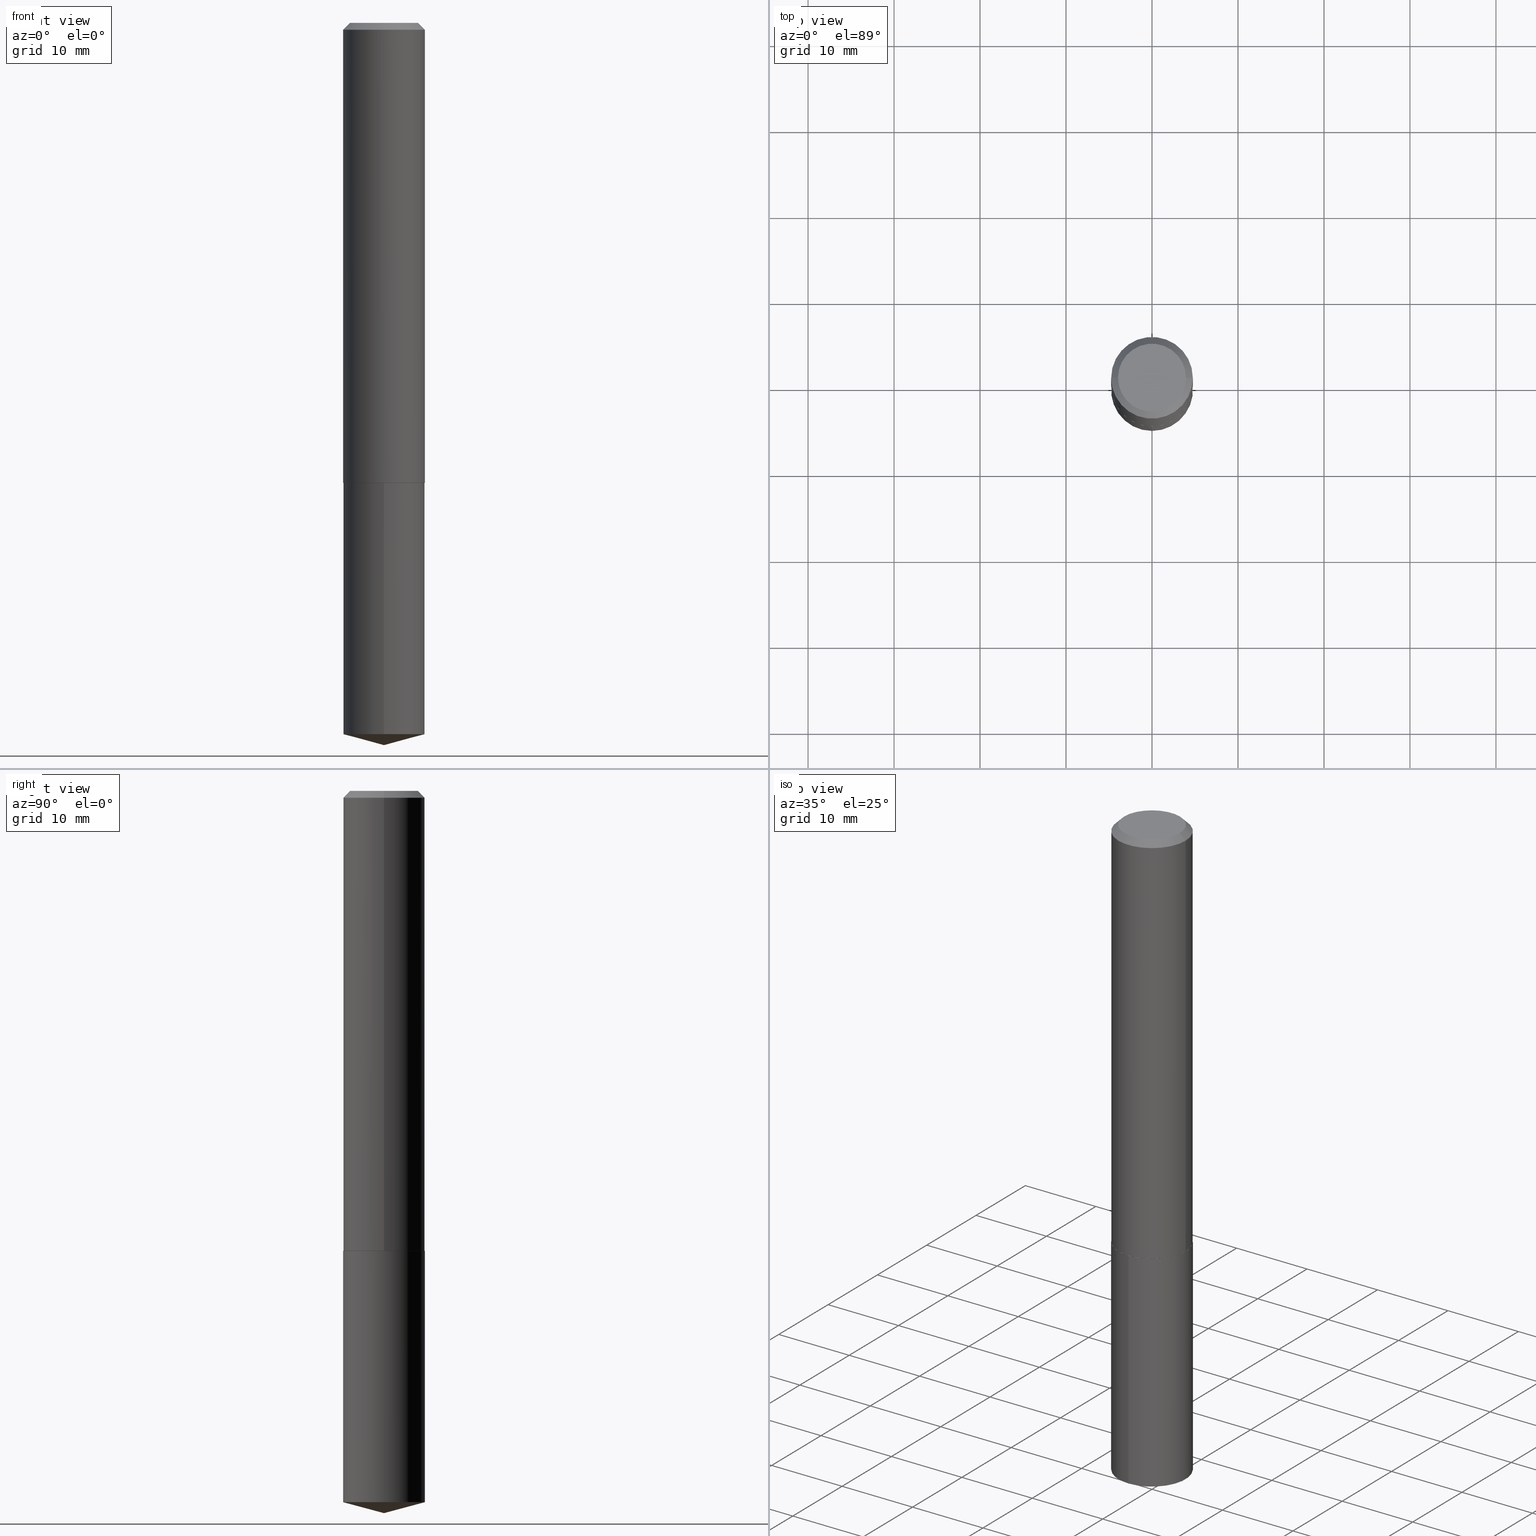
[diagram: canonical four-view strip — front | top / right | iso, engineering-drawing reading convention]
A machine part, canonical four-view strip (front | top / right | iso — engineering-drawing reading convention). The complete STEP part file that produces these views, byte-faithful:
ISO-10303-21;
HEADER;
FILE_DESCRIPTION (( 'STEP AP203' ),
    '1' );
FILE_NAME ('69030.STEP',
    '2024-04-23T14:29:03',
    ( '' ),
    ( '' ),
    'SwSTEP 2.0',
    'SolidWorks 2023',
    '' );
FILE_SCHEMA (( 'CONFIG_CONTROL_DESIGN' ));
ENDSEC;

DATA;
#1 = VERTEX_POINT ( 'NONE', #124 ) ;
#2 = LINE ( 'NONE', #221, #215 ) ;
#3 = DIRECTION ( 'NONE',  ( -2.445468806185136597E-29, 3.491481338843145583E-15, 1.000000000000000000 ) ) ;
#4 = CARTESIAN_POINT ( 'NONE',  ( 7.642090019328603538E-31, -1.091087918388490390E-16, -0.03125000000000021511 ) ) ;
#5 = EDGE_CURVE ( 'NONE', #281, #332, #63, .T. ) ;
#6 = CARTESIAN_POINT ( 'NONE',  ( -5.839929314523303030E-48, 8.337871319499263790E-34, 2.388061258337386140E-19 ) ) ;
#7 = ORIENTED_EDGE ( 'NONE', *, *, #5, .T. ) ;
#8 = CIRCLE ( 'NONE', #83, 0.1557499999999999996 ) ;
#9 = AXIS2_PLACEMENT_3D ( 'NONE', #148, #192, #74 ) ;
#10 = DIRECTION ( 'NONE',  ( -6.982962677686266711E-15, -1.000000000000000000, 2.921762560068730595E-15 ) ) ;
#11 = EDGE_CURVE ( 'NONE', #146, #362, #228, .T. ) ;
#12 = PERSON_AND_ORGANIZATION ( #333, #45 ) ;
#13 = EDGE_CURVE ( 'NONE', #181, #119, #117, .T. ) ;
#14 = SECURITY_CLASSIFICATION ( '', '', #57 ) ;
#15 = ORIENTED_EDGE ( 'NONE', *, *, #245, .F. ) ;
#16 = CALENDAR_DATE ( 2024, 23, 4 ) ;
#17 = ORIENTED_EDGE ( 'NONE', *, *, #178, .T. ) ;
#18 = VECTOR ( 'NONE', #326, 39.37007874015748854 ) ;
#19 = PERSON_AND_ORGANIZATION_ROLE ( 'design_supplier' ) ;
#20 = CC_DESIGN_PERSON_AND_ORGANIZATION_ASSIGNMENT ( #278, #359, ( #132 ) ) ;
#21 = ORIENTED_EDGE ( 'NONE', *, *, #178, .F. ) ;
#22 = ORIENTED_EDGE ( 'NONE', *, *, #234, .T. ) ;
#23 = VERTEX_POINT ( 'NONE', #127 ) ;
#24 = EDGE_CURVE ( 'NONE', #181, #261, #258, .T. ) ;
#25 = VECTOR ( 'NONE', #195, 39.37007874015748854 ) ;
#26 = ORIENTED_EDGE ( 'NONE', *, *, #364, .F. ) ;
#27 = LOCAL_TIME ( 10, 29, 3.000000000000000000, #210 ) ;
#28 = DIRECTION ( 'NONE',  ( -0.7071067811862092878, 7.493145998869131426E-15, 0.7071067811868855246 ) ) ;
#29 = DIRECTION ( 'NONE',  ( -2.445529047864753250E-29, 3.491395069329191729E-15, 1.000000000000000000 ) ) ;
#30 = PRODUCT_DEFINITION_SHAPE ( 'NONE', 'NONE',  #263 ) ;
#31 =( NAMED_UNIT ( * ) SI_UNIT ( $, .STERADIAN. ) SOLID_ANGLE_UNIT ( ) );
#32 = CARTESIAN_POINT ( 'NONE',  ( -8.819318894863392417E-28, 1.259099244492320307E-13, 36.06297874015748306 ) ) ;
#33 = DIRECTION ( 'NONE',  ( -2.445468806185136597E-29, 3.491481338843145583E-15, 1.000000000000000000 ) ) ;
#34 = ORIENTED_EDGE ( 'NONE', *, *, #212, .F. ) ;
#35 = CARTESIAN_POINT ( 'NONE',  ( 1.328714915871438620E-15, 0.1869999999999926721, -2.106300000000000949 ) ) ;
#36 = CIRCLE ( 'NONE', #161, 0.1865000000000008595 ) ;
#37 = APPROVAL_PERSON_ORGANIZATION ( #356, #200, #327 ) ;
#38 = EDGE_CURVE ( 'NONE', #90, #51, #36, .T. ) ;
#39 = CARTESIAN_POINT ( 'NONE',  ( -0.1557499999999999996, 1.142150832969059533E-15, 2.388061258259420163E-19 ) ) ;
#40 = EDGE_LOOP ( 'NONE', ( #21, #368, #338, #302 ) ) ;
#41 = DIRECTION ( 'NONE',  ( -6.982962677686266711E-15, -1.000000000000000000, 2.921762560068730595E-15 ) ) ;
#42 = PRODUCT_RELATED_PRODUCT_CATEGORY ( 'detail', '', ( #284 ) ) ;
#43 = APPLICATION_PROTOCOL_DEFINITION ( 'international standard', 'config_control_design', 1994, #219 ) ;
#44 = CIRCLE ( 'NONE', #255, 0.1870000000000002771 ) ;
#45 = ORGANIZATION ( 'UNSPECIFIED', 'UNSPECIFIED', '' ) ;
#46 = DIRECTION ( 'NONE',  ( 1.000000000000000000, -6.982962677686265922E-15, 4.876176775795935793E-29 ) ) ;
#47 = LINE ( 'NONE', #174, #123 ) ;
#48 = COORDINATED_UNIVERSAL_TIME_OFFSET ( 5, 0, .BEHIND. ) ;
#49 = MANIFOLD_SOLID_BREP ( 'Body-Move/Copy2[2]', #67 ) ;
#50 = DIRECTION ( 'NONE',  ( -6.982962677686266711E-15, -1.000000000000000000, 2.921762560068730595E-15 ) ) ;
#51 = VERTEX_POINT ( 'NONE', #283 ) ;
#52 = DIRECTION ( 'NONE',  ( 2.445468806185136597E-29, -3.491481338843145583E-15, -1.000000000000000000 ) ) ;
#53 = APPROVAL_DATE_TIME ( #243, #200 ) ;
#54 = ORIENTED_EDGE ( 'NONE', *, *, #250, .F. ) ;
#55 = PERSON_AND_ORGANIZATION_ROLE ( 'creator' ) ;
#56 = ORIENTED_EDGE ( 'NONE', *, *, #24, .T. ) ;
#57 = SECURITY_CLASSIFICATION_LEVEL ( 'unclassified' ) ;
#58 = EDGE_CURVE ( 'NONE', #362, #332, #176, .T. ) ;
#59 = EDGE_LOOP ( 'NONE', ( #26, #225, #56, #329 ) ) ;
#60 = ADVANCED_FACE ( 'NONE', ( #290 ), #335, .T. ) ;
#61 = EDGE_LOOP ( 'NONE', ( #275, #108, #190, #87 ) ) ;
#62 = FACE_OUTER_BOUND ( 'NONE', #344, .T. ) ;
#63 = LINE ( 'NONE', #120, #138 ) ;
#64 = EDGE_CURVE ( 'NONE', #92, #362, #154, .T. ) ;
#65 = LINE ( 'NONE', #129, #25 ) ;
#66 = CARTESIAN_POINT ( 'NONE',  ( 5.149668212064661332E-29, -7.352361403335897886E-15, -2.105800000000000338 ) ) ;
#67 = CLOSED_SHELL ( 'NONE', ( #186, #88, #60, #194, #336, #93, #286, #291 ) ) ;
#68 = CARTESIAN_POINT ( 'NONE',  ( 0.000000000000000000, 0.000000000000000000, 0.000000000000000000 ) ) ;
#69 = CC_DESIGN_DATE_AND_TIME_ASSIGNMENT ( #180, #109, ( #263 ) ) ;
#70 = CARTESIAN_POINT ( 'NONE',  ( 5.150890946467754134E-29, -7.354107144005318601E-15, -2.106300000000000505 ) ) ;
#71 = DIRECTION ( 'NONE',  ( -2.445468806185136877E-29, 3.491481338843145188E-15, 1.000000000000000000 ) ) ;
#72 = CARTESIAN_POINT ( 'NONE',  ( 0.1870000000000002771, -8.658175424063231465E-15, -2.105800000000000338 ) ) ;
#73 = CIRCLE ( 'NONE', #340, 0.1870000000000002771 ) ;
#74 = DIRECTION ( 'NONE',  ( -6.982962677686266711E-15, -1.000000000000000000, 2.921762560068730595E-15 ) ) ;
#75 = FACE_OUTER_BOUND ( 'NONE', #80, .T. ) ;
#76 = DIRECTION ( 'NONE',  ( 1.000000000000000000, -6.982962677686265133E-15, 0.000000000000000000 ) ) ;
#77 = CC_DESIGN_PERSON_AND_ORGANIZATION_ASSIGNMENT ( #205, #319, ( #284 ) ) ;
#78 = PLANE ( 'NONE',  #374 ) ;
#79 = PERSON_AND_ORGANIZATION ( #333, #45 ) ;
#80 = EDGE_LOOP ( 'NONE', ( #242, #116, #334, #247 ) ) ;
#81 = DIRECTION ( 'NONE',  ( 1.000000000000000000, -6.982962677686266711E-15, 0.000000000000000000 ) ) ;
#82 = APPROVAL_ROLE ( '' ) ;
#83 = AXIS2_PLACEMENT_3D ( 'NONE', #6, #126, #227 ) ;
#84 = EDGE_LOOP ( 'NONE', ( #188, #310, #183 ) ) ;
#85 = AXIS2_PLACEMENT_3D ( 'NONE', #365, #155, #102 ) ;
#86 = CALENDAR_DATE ( 2024, 23, 4 ) ;
#87 = ORIENTED_EDGE ( 'NONE', *, *, #234, .F. ) ;
#88 = ADVANCED_FACE ( 'NONE', ( #376 ), #163, .T. ) ;
#89 = AXIS2_PLACEMENT_3D ( 'NONE', #32, #160, #288 ) ;
#90 = VERTEX_POINT ( 'NONE', #164 ) ;
#91 = CIRCLE ( 'NONE', #305, 0.1557499999999999996 ) ;
#92 = VERTEX_POINT ( 'NONE', #292 ) ;
#93 = ADVANCED_FACE ( 'NONE', ( #101 ), #232, .T. ) ;
#94 = DIRECTION ( 'NONE',  ( -2.445529047864752970E-29, 3.491395069329191335E-15, 1.000000000000000000 ) ) ;
#95 = CARTESIAN_POINT ( 'NONE',  ( 7.964945328390054488E-29, -1.137163275975956234E-14, -3.256993501015380321 ) ) ;
#96 = CARTESIAN_POINT ( 'NONE',  ( -0.1870000000000001383, 1.328714915871388330E-15, -9.198408618776680107E-30 ) ) ;
#97 = CARTESIAN_POINT ( 'NONE',  ( 5.150890946467754134E-29, -7.354107144005318601E-15, -2.106300000000000505 ) ) ;
#98 = CARTESIAN_POINT ( 'NONE',  ( -0.1870000000000000551, 1.196705228888483098E-15, -0.03125000000000021511 ) ) ;
#99 = AXIS2_PLACEMENT_3D ( 'NONE', #68, #223, #202 ) ;
#100 = DIRECTION ( 'NONE',  ( -1.000000000000000000, 6.982962677686266711E-15, 0.000000000000000000 ) ) ;
#101 = FACE_OUTER_BOUND ( 'NONE', #325, .T. ) ;
#102 = DIRECTION ( 'NONE',  ( 1.000000000000000000, 0.000000000000000000, 0.000000000000000000 ) ) ;
#103 = DIRECTION ( 'NONE',  ( 1.000000000000000000, -6.982962677686265133E-15, 0.000000000000000000 ) ) ;
#104 = CARTESIAN_POINT ( 'NONE',  ( -1.305814020727252721E-15, -0.1870000000000114626, -3.256993501015379877 ) ) ;
#105 = AXIS2_PLACEMENT_3D ( 'NONE', #97, #94, #317 ) ;
#106 = SHAPE_DEFINITION_REPRESENTATION ( #30, #171 ) ;
#107 = CARTESIAN_POINT ( 'NONE',  ( 5.150890946467754134E-29, -7.354107144005318601E-15, -2.106300000000000505 ) ) ;
#108 = ORIENTED_EDGE ( 'NONE', *, *, #389, .T. ) ;
#109 = DATE_TIME_ROLE ( 'creation_date' ) ;
#110 = ADVANCED_FACE ( 'NONE', ( #62 ), #313, .T. ) ;
#111 = CIRCLE ( 'NONE', #369, 0.1870000000000000551 ) ;
#112 = AXIS2_PLACEMENT_3D ( 'NONE', #375, #301, #41 ) ;
#113 = ORIENTED_EDGE ( 'NONE', *, *, #130, .T. ) ;
#114 = DATE_AND_TIME ( #86, #280 ) ;
#115 = APPROVAL ( #331, 'UNSPECIFIED' ) ;
#116 = ORIENTED_EDGE ( 'NONE', *, *, #130, .F. ) ;
#117 = CIRCLE ( 'NONE', #229, 0.1869999999999999996 ) ;
#118 = AXIS2_PLACEMENT_3D ( 'NONE', #143, #295, #324 ) ;
#119 = VERTEX_POINT ( 'NONE', #141 ) ;
#120 = CARTESIAN_POINT ( 'NONE',  ( 0.1870000000000001383, -1.305814020727332790E-15, 9.118450570738406715E-30 ) ) ;
#121 = EDGE_CURVE ( 'NONE', #23, #332, #65, .T. ) ;
#122 = DIRECTION ( 'NONE',  ( -2.445468806185136597E-29, 3.491481338843145583E-15, 1.000000000000000000 ) ) ;
#123 = VECTOR ( 'NONE', #136, 39.37007874015748854 ) ;
#124 = CARTESIAN_POINT ( 'NONE',  ( 1.328714915871467217E-15, 0.1869999999999926998, -2.106300000000000949 ) ) ;
#125 = APPLICATION_PROTOCOL_DEFINITION ( 'international standard', 'config_control_design', 1994, #277 ) ;
#126 = DIRECTION ( 'NONE',  ( -2.445468806185136597E-29, 3.491481338843145583E-15, 1.000000000000000000 ) ) ;
#127 = CARTESIAN_POINT ( 'NONE',  ( 0.1557499999999999996, -1.230272240287521027E-15, 2.388061258418428791E-19 ) ) ;
#128 = CARTESIAN_POINT ( 'NONE',  ( -0.1870000000000000551, -2.402020181715984177E-15, -0.03125000000000021511 ) ) ;
#129 = CARTESIAN_POINT ( 'NONE',  ( 0.1870000000000000551, -1.392021917422125758E-15, -0.03125000000000021511 ) ) ;
#130 = EDGE_CURVE ( 'NONE', #146, #23, #91, .T. ) ;
#131 = CONICAL_SURFACE ( 'NONE', #385, 0.1870000000000000551, 0.7853981633974456145 ) ;
#132 = PRODUCT_DEFINITION_FORMATION_WITH_SPECIFIED_SOURCE ( 'ANY', '', #284, .NOT_KNOWN. ) ;
#133 = FACE_OUTER_BOUND ( 'NONE', #366, .T. ) ;
#134 = DESIGN_CONTEXT ( 'detailed design', #219, 'design' ) ;
#135 = ORIENTED_EDGE ( 'NONE', *, *, #381, .T. ) ;
#136 = DIRECTION ( 'NONE',  ( -6.745023994389837555E-15, -0.9659258262890675351, 0.2588190451025239036 ) ) ;
#137 = PERSON_AND_ORGANIZATION_ROLE ( 'classification_officer' ) ;
#138 = VECTOR ( 'NONE', #71, 39.37007874015748143 ) ;
#139 = LOCAL_TIME ( 10, 29, 3.000000000000000000, #48 ) ;
#140 = FACE_OUTER_BOUND ( 'NONE', #40, .T. ) ;
#141 = CARTESIAN_POINT ( 'NONE',  ( 1.328714915871467414E-15, 0.1869999999999887030, -3.256993501015380765 ) ) ;
#142 = ORIENTED_EDGE ( 'NONE', *, *, #13, .F. ) ;
#143 = CARTESIAN_POINT ( 'NONE',  ( -2.919964657261651515E-48, 4.168935659749631895E-34, 1.194030629168693070E-19 ) ) ;
#144 = CALENDAR_DATE ( 2024, 23, 4 ) ;
#145 = EDGE_CURVE ( 'NONE', #261, #1, #151, .T. ) ;
#146 = VERTEX_POINT ( 'NONE', #39 ) ;
#147 = CARTESIAN_POINT ( 'NONE',  ( 5.150890946467754134E-29, -7.354107144005318601E-15, -2.106300000000000505 ) ) ;
#148 = CARTESIAN_POINT ( 'NONE',  ( 7.964945328390054488E-29, -1.137163275975956234E-14, -3.256993501015380321 ) ) ;
#149 = ORIENTED_EDGE ( 'NONE', *, *, #245, .T. ) ;
#150 = DIRECTION ( 'NONE',  ( -2.445529047864753250E-29, 3.491395069329191729E-15, 1.000000000000000000 ) ) ;
#151 = CIRCLE ( 'NONE', #105, 0.1869999999999999996 ) ;
#152 = AXIS2_PLACEMENT_3D ( 'NONE', #320, #52, #321 ) ;
#153 = ORIENTED_EDGE ( 'NONE', *, *, #58, .F. ) ;
#154 = LINE ( 'NONE', #96, #266 ) ;
#155 = DIRECTION ( 'NONE',  ( 0.000000000000000000, 0.000000000000000000, 1.000000000000000000 ) ) ;
#156 = DIRECTION ( 'NONE',  ( 6.863315791527691893E-15, 0.9659258262890693114, 0.2588190451025171313 ) ) ;
#157 = ORIENTED_EDGE ( 'NONE', *, *, #346, .F. ) ;
#158 = DIRECTION ( 'NONE',  ( -2.445529047864752970E-29, 3.491395069329191335E-15, 1.000000000000000000 ) ) ;
#159 = CARTESIAN_POINT ( 'NONE',  ( 0.1870000000000000551, -1.414922812566181102E-15, -0.03125000000000021511 ) ) ;
#160 = DIRECTION ( 'NONE',  ( -2.445529047864752970E-29, 3.491395069329191335E-15, 1.000000000000000000 ) ) ;
#161 = AXIS2_PLACEMENT_3D ( 'NONE', #252, #350, #372 ) ;
#162 = VECTOR ( 'NONE', #28, 39.37007874015748854 ) ;
#163 = CYLINDRICAL_SURFACE ( 'NONE', #99, 0.1870000000000001383 ) ;
#164 = CARTESIAN_POINT ( 'NONE',  ( 0.1865000000000008595, -8.656429683393813906E-15, -2.106300000000000505 ) ) ;
#165 = UNCERTAINTY_MEASURE_WITH_UNIT (LENGTH_MEASURE( 1.000000000000000082E-05 ), #224, 'distance_accuracy_value', 'NONE');
#166 = PERSON_AND_ORGANIZATION ( #333, #45 ) ;
#167 = CIRCLE ( 'NONE', #237, 0.1869999999999999996 ) ;
#168 = DIRECTION ( 'NONE',  ( 1.000000000000000000, -6.982962677686266711E-15, 0.000000000000000000 ) ) ;
#169 = PLANE ( 'NONE',  #358 ) ;
#170 = ADVANCED_FACE ( 'NONE', ( #312 ), #191, .T. ) ;
#171 = ADVANCED_BREP_SHAPE_REPRESENTATION ( '69030', ( #187, #49, #85 ), #361 ) ;
#172 = PLANE ( 'NONE',  #118 ) ;
#173 = APPROVAL_DATE_TIME ( #214, #330 ) ;
#174 = CARTESIAN_POINT ( 'NONE',  ( 8.087355340093972411E-29, -1.154675605273305340E-14, -3.307100000000000151 ) ) ;
#175 = CALENDAR_DATE ( 2024, 23, 4 ) ;
#176 = CIRCLE ( 'NONE', #306, 0.1870000000000000551 ) ;
#177 = ORIENTED_EDGE ( 'NONE', *, *, #145, .T. ) ;
#178 = EDGE_CURVE ( 'NONE', #23, #146, #8, .T. ) ;
#179 = DIRECTION ( 'NONE',  ( 2.445529047864752409E-29, -3.491395069329191729E-15, -1.000000000000000000 ) ) ;
#180 = DATE_AND_TIME ( #16, #27 ) ;
#181 = VERTEX_POINT ( 'NONE', #104 ) ;
#182 = APPROVAL_DATE_TIME ( #246, #115 ) ;
#183 = ORIENTED_EDGE ( 'NONE', *, *, #342, .F. ) ;
#184 = APPROVAL_ROLE ( '' ) ;
#185 = APPROVAL_PERSON_ORGANIZATION ( #166, #330, #82 ) ;
#186 = ADVANCED_FACE ( 'NONE', ( #140 ), #131, .T. ) ;
#187 = MANIFOLD_SOLID_BREP ( 'Body-Move/Copy2[1]', #352 ) ;
#188 = ORIENTED_EDGE ( 'NONE', *, *, #381, .F. ) ;
#189 = ORIENTED_EDGE ( 'NONE', *, *, #24, .F. ) ;
#190 = ORIENTED_EDGE ( 'NONE', *, *, #220, .F. ) ;
#191 = CONICAL_SURFACE ( 'NONE', #89, 146.9311341562551547, 1.308996938995747428 ) ;
#192 = DIRECTION ( 'NONE',  ( -2.445529047864752970E-29, 3.491395069329191335E-15, 1.000000000000000000 ) ) ;
#193 = AXIS2_PLACEMENT_3D ( 'NONE', #249, #33, #76 ) ;
#194 = ADVANCED_FACE ( 'NONE', ( #353 ), #169, .F. ) ;
#195 = DIRECTION ( 'NONE',  ( 0.7071067811865455743, -7.319954787623248157E-15, -0.7071067811865493491 ) ) ;
#196 = CARTESIAN_POINT ( 'NONE',  ( -8.819318894863392417E-28, 1.259099244492320307E-13, 36.06297874015748306 ) ) ;
#197 =( NAMED_UNIT ( * ) PLANE_ANGLE_UNIT ( ) SI_UNIT ( $, .RADIAN. ) );
#198 = DIRECTION ( 'NONE',  ( 1.000000000000000000, -6.982962677686265922E-15, 4.876169439353216906E-29 ) ) ;
#199 = DIRECTION ( 'NONE',  ( -2.445529047864752970E-29, 3.491395069329191335E-15, 1.000000000000000000 ) ) ;
#200 = APPROVAL ( #383, 'UNSPECIFIED' ) ;
#201 = DIRECTION ( 'NONE',  ( 1.000000000000000000, -6.982962677686265133E-15, 0.000000000000000000 ) ) ;
#202 = DIRECTION ( 'NONE',  ( 1.000000000000000000, -6.982962677686266711E-15, 4.876176775795935793E-29 ) ) ;
#203 = CARTESIAN_POINT ( 'NONE',  ( 5.149668212064661332E-29, -7.352361403335897886E-15, -2.105800000000000338 ) ) ;
#204 = CARTESIAN_POINT ( 'NONE',  ( 0.000000000000000000, 0.000000000000000000, 0.000000000000000000 ) ) ;
#205 = PERSON_AND_ORGANIZATION ( #333, #45 ) ;
#206 = DIRECTION ( 'NONE',  ( 1.000000000000000000, -6.982962677686265133E-15, 0.000000000000000000 ) ) ;
#207 = ADVANCED_FACE ( 'NONE', ( #133 ), #357, .T. ) ;
#208 = FACE_OUTER_BOUND ( 'NONE', #363, .T. ) ;
#209 = FACE_OUTER_BOUND ( 'NONE', #382, .T. ) ;
#210 = COORDINATED_UNIVERSAL_TIME_OFFSET ( 5, 0, .BEHIND. ) ;
#211 = DIRECTION ( 'NONE',  ( -2.445468806185136597E-29, 3.491481338843145583E-15, 1.000000000000000000 ) ) ;
#212 = EDGE_CURVE ( 'NONE', #332, #362, #111, .T. ) ;
#213 = DIRECTION ( 'NONE',  ( -2.445468806185136597E-29, 3.491481338843145583E-15, 1.000000000000000000 ) ) ;
#214 = DATE_AND_TIME ( #144, #218 ) ;
#215 = VECTOR ( 'NONE', #156, 39.37007874015748854 ) ;
#216 = DATE_TIME_ROLE ( 'classification_date' ) ;
#217 = ORIENTED_EDGE ( 'NONE', *, *, #346, .T. ) ;
#218 = LOCAL_TIME ( 10, 29, 3.000000000000000000, #271 ) ;
#219 = APPLICATION_CONTEXT ( 'configuration controlled 3d designs of mechanical parts and assemblies' ) ;
#220 = EDGE_CURVE ( 'NONE', #281, #92, #73, .T. ) ;
#221 = CARTESIAN_POINT ( 'NONE',  ( 8.087611339492822148E-29, -1.154639263377856936E-14, -3.307100000000000151 ) ) ;
#222 = AXIS2_PLACEMENT_3D ( 'NONE', #204, #3, #343 ) ;
#223 = DIRECTION ( 'NONE',  ( -2.445468806185136597E-29, 3.491481338843145583E-15, 1.000000000000000000 ) ) ;
#224 =( CONVERSION_BASED_UNIT ( 'INCH', #254 ) LENGTH_UNIT ( ) NAMED_UNIT ( #276 ) );
#225 = ORIENTED_EDGE ( 'NONE', *, *, #342, .T. ) ;
#226 = LINE ( 'NONE', #309, #162 ) ;
#227 = DIRECTION ( 'NONE',  ( 1.000000000000000000, -6.982962677686265922E-15, 4.876169439353216906E-29 ) ) ;
#228 = LINE ( 'NONE', #98, #298 ) ;
#229 = AXIS2_PLACEMENT_3D ( 'NONE', #95, #199, #289 ) ;
#230 = DIRECTION ( 'NONE',  ( -2.445468806185136877E-29, 3.491481338843145188E-15, 1.000000000000000000 ) ) ;
#231 = FACE_OUTER_BOUND ( 'NONE', #59, .T. ) ;
#232 = CYLINDRICAL_SURFACE ( 'NONE', #222, 0.1870000000000001383 ) ;
#233 = MECHANICAL_CONTEXT ( 'NONE', #277, 'mechanical' ) ;
#234 = EDGE_CURVE ( 'NONE', #90, #281, #379, .T. ) ;
#235 = DIRECTION ( 'NONE',  ( -2.445468806185136597E-29, 3.491481338843145583E-15, 1.000000000000000000 ) ) ;
#236 = CARTESIAN_POINT ( 'NONE',  ( 0.1870000000000002771, -8.658175424063231465E-15, -2.105800000000000338 ) ) ;
#237 = AXIS2_PLACEMENT_3D ( 'NONE', #147, #282, #10 ) ;
#238 = DIRECTION ( 'NONE',  ( -2.445468806185136597E-29, 3.491481338843145583E-15, 1.000000000000000000 ) ) ;
#239 = CC_DESIGN_PERSON_AND_ORGANIZATION_ASSIGNMENT ( #386, #55, ( #263 ) ) ;
#240 = DIRECTION ( 'NONE',  ( 2.445468806185136597E-29, -3.491481338843145583E-15, -1.000000000000000000 ) ) ;
#241 = PERSON_AND_ORGANIZATION ( #333, #45 ) ;
#242 = ORIENTED_EDGE ( 'NONE', *, *, #121, .F. ) ;
#243 = DATE_AND_TIME ( #175, #370 ) ;
#244 = AXIS2_PLACEMENT_3D ( 'NONE', #351, #211, #168 ) ;
#245 = EDGE_CURVE ( 'NONE', #92, #281, #44, .T. ) ;
#246 = DATE_AND_TIME ( #265, #139 ) ;
#247 = ORIENTED_EDGE ( 'NONE', *, *, #58, .T. ) ;
#248 = ORIENTED_EDGE ( 'NONE', *, *, #64, .T. ) ;
#249 = CARTESIAN_POINT ( 'NONE',  ( 5.149668212064661332E-29, -7.352361403335897886E-15, -2.105800000000000338 ) ) ;
#250 = EDGE_CURVE ( 'NONE', #387, #181, #47, .T. ) ;
#251 = LINE ( 'NONE', #35, #273 ) ;
#252 = CARTESIAN_POINT ( 'NONE',  ( 5.150890946467754134E-29, -7.354107144005318601E-15, -2.106300000000000505 ) ) ;
#253 =( LENGTH_UNIT ( ) NAMED_UNIT ( * ) SI_UNIT ( $, .METRE. ) );
#254 = LENGTH_MEASURE_WITH_UNIT ( LENGTH_MEASURE( 0.02539999999999999897 ), #253 );
#255 = AXIS2_PLACEMENT_3D ( 'NONE', #349, #238, #206 ) ;
#256 = CC_DESIGN_APPROVAL ( #200, ( #132 ) ) ;
#257 = DIRECTION ( 'NONE',  ( -0.7071067811865455743, 2.468850131082236945E-15, -0.7071067811865493491 ) ) ;
#258 = LINE ( 'NONE', #345, #378 ) ;
#259 = DIRECTION ( 'NONE',  ( 1.000000000000000000, -6.982962677686266711E-15, 0.000000000000000000 ) ) ;
#260 = CONICAL_SURFACE ( 'NONE', #152, 0.1870000000000000551, 0.7853981633974456145 ) ;
#261 = VERTEX_POINT ( 'NONE', #377 ) ;
#262 = DIRECTION ( 'NONE',  ( -2.445529047864752970E-29, 3.491395069329191335E-15, 1.000000000000000000 ) ) ;
#263 = PRODUCT_DEFINITION ( 'UNKNOWN', '', #132, #134 ) ;
#264 = CARTESIAN_POINT ( 'NONE',  ( 7.642090019328603538E-31, -1.091087918388490390E-16, -0.03125000000000021511 ) ) ;
#265 = CALENDAR_DATE ( 2024, 23, 4 ) ;
#266 = VECTOR ( 'NONE', #230, 39.37007874015748143 ) ;
#267 = CYLINDRICAL_SURFACE ( 'NONE', #112, 0.1869999999999999996 ) ;
#268 = COORDINATED_UNIVERSAL_TIME_OFFSET ( 5, 0, .BEHIND. ) ;
#269 = EDGE_LOOP ( 'NONE', ( #177, #390 ) ) ;
#270 = EDGE_LOOP ( 'NONE', ( #384, #248, #34, #279 ) ) ;
#271 = COORDINATED_UNIVERSAL_TIME_OFFSET ( 5, 0, .BEHIND. ) ;
#272 = AXIS2_PLACEMENT_3D ( 'NONE', #66, #315, #201 ) ;
#273 = VECTOR ( 'NONE', #150, 39.37007874015748143 ) ;
#274 = CC_DESIGN_PERSON_AND_ORGANIZATION_ASSIGNMENT ( #241, #19, ( #132 ) ) ;
#275 = ORIENTED_EDGE ( 'NONE', *, *, #38, .T. ) ;
#276 = DIMENSIONAL_EXPONENTS ( 1.000000000000000000, 0.000000000000000000, 0.000000000000000000, 0.000000000000000000, 0.000000000000000000, 0.000000000000000000, 0.000000000000000000 ) ;
#277 = APPLICATION_CONTEXT ( 'configuration controlled 3d designs of mechanical parts and assemblies' ) ;
#278 = PERSON_AND_ORGANIZATION ( #333, #45 ) ;
#279 = ORIENTED_EDGE ( 'NONE', *, *, #5, .F. ) ;
#280 = LOCAL_TIME ( 10, 29, 3.000000000000000000, #268 ) ;
#281 = VERTEX_POINT ( 'NONE', #236 ) ;
#282 = DIRECTION ( 'NONE',  ( -2.445529047864752970E-29, 3.491395069329191335E-15, 1.000000000000000000 ) ) ;
#283 = CARTESIAN_POINT ( 'NONE',  ( -0.1865000000000008595, -6.026295714638616615E-15, -2.106300000000000505 ) ) ;
#284 = PRODUCT ( '69030', '69030', '', ( #233 ) ) ;
#285 = DIRECTION ( 'NONE',  ( -6.982962677686265922E-15, -1.000000000000000000, 3.510303681827636883E-15 ) ) ;
#286 = ADVANCED_FACE ( 'NONE', ( #75 ), #260, .T. ) ;
#287 = CIRCLE ( 'NONE', #9, 0.1869999999999999996 ) ;
#288 = DIRECTION ( 'NONE',  ( -6.982962677686265922E-15, -1.000000000000000000, 3.510303681827636883E-15 ) ) ;
#289 = DIRECTION ( 'NONE',  ( -6.982962677686266711E-15, -1.000000000000000000, 2.921762560068730595E-15 ) ) ;
#290 = FACE_OUTER_BOUND ( 'NONE', #61, .T. ) ;
#291 = ADVANCED_FACE ( 'NONE', ( #209 ), #172, .F. ) ;
#292 = CARTESIAN_POINT ( 'NONE',  ( -0.1870000000000002771, -6.023646487464508570E-15, -2.105800000000000338 ) ) ;
#293 = AXIS2_PLACEMENT_3D ( 'NONE', #70, #262, #50 ) ;
#294 = CARTESIAN_POINT ( 'NONE',  ( 7.642090019328603538E-31, -1.091087918388490390E-16, -0.03125000000000021511 ) ) ;
#295 = DIRECTION ( 'NONE',  ( 2.438088387897960049E-29, -3.491481338843145188E-15, -1.000000000000000000 ) ) ;
#296 = APPROVAL_STATUS ( 'not_yet_approved' ) ;
#297 = DIRECTION ( 'NONE',  ( 6.982962677686265922E-15, 1.000000000000000000, -3.491395069329191729E-15 ) ) ;
#298 = VECTOR ( 'NONE', #257, 39.37007874015748854 ) ;
#299 = CC_DESIGN_SECURITY_CLASSIFICATION ( #14, ( #132 ) ) ;
#300 = ORIENTED_EDGE ( 'NONE', *, *, #389, .F. ) ;
#301 = DIRECTION ( 'NONE',  ( -2.445529047864752970E-29, 3.491395069329191335E-15, 1.000000000000000000 ) ) ;
#302 = ORIENTED_EDGE ( 'NONE', *, *, #11, .F. ) ;
#303 = ADVANCED_FACE ( 'NONE', ( #355 ), #78, .F. ) ;
#304 = ORIENTED_EDGE ( 'NONE', *, *, #13, .T. ) ;
#305 = AXIS2_PLACEMENT_3D ( 'NONE', #339, #122, #198 ) ;
#306 = AXIS2_PLACEMENT_3D ( 'NONE', #4, #348, #259 ) ;
#307 = CONICAL_SURFACE ( 'NONE', #193, 0.1870000000000002771, 0.7853981633969702170 ) ;
#308 = ORIENTED_EDGE ( 'NONE', *, *, #64, .F. ) ;
#309 = CARTESIAN_POINT ( 'NONE',  ( -0.1870000000000002771, -6.023646487464508570E-15, -2.105800000000000338 ) ) ;
#310 = ORIENTED_EDGE ( 'NONE', *, *, #250, .T. ) ;
#311 = ADVANCED_FACE ( 'NONE', ( #231 ), #267, .T. ) ;
#312 = FACE_OUTER_BOUND ( 'NONE', #84, .T. ) ;
#313 = CONICAL_SURFACE ( 'NONE', #328, 146.9311341562551547, 1.308996938995747428 ) ;
#314 = APPROVAL_PERSON_ORGANIZATION ( #79, #115, #184 ) ;
#315 = DIRECTION ( 'NONE',  ( -2.445468806185136597E-29, 3.491481338843145583E-15, 1.000000000000000000 ) ) ;
#316 = CC_DESIGN_DATE_AND_TIME_ASSIGNMENT ( #114, #216, ( #14 ) ) ;
#317 = DIRECTION ( 'NONE',  ( -6.982962677686266711E-15, -1.000000000000000000, 2.921762560068730595E-15 ) ) ;
#318 = CARTESIAN_POINT ( 'NONE',  ( 5.150890946467754134E-29, -7.354107144005318601E-15, -2.106300000000000505 ) ) ;
#319 = PERSON_AND_ORGANIZATION_ROLE ( 'design_owner' ) ;
#320 = CARTESIAN_POINT ( 'NONE',  ( 7.642090019328603538E-31, -1.091087918388490390E-16, -0.03125000000000021511 ) ) ;
#321 = DIRECTION ( 'NONE',  ( -1.000000000000000000, 6.982962677686266711E-15, 0.000000000000000000 ) ) ;
#322 = COORDINATED_UNIVERSAL_TIME_OFFSET ( 5, 0, .BEHIND. ) ;
#323 = EDGE_CURVE ( 'NONE', #1, #261, #167, .T. ) ;
#324 = DIRECTION ( 'NONE',  ( -1.000000000000000000, 6.982962677686265922E-15, -4.876176775795935793E-29 ) ) ;
#325 = EDGE_LOOP ( 'NONE', ( #308, #149, #7, #153 ) ) ;
#326 = DIRECTION ( 'NONE',  ( 0.7071067811862092878, -2.468850131078715470E-15, 0.7071067811868855246 ) ) ;
#327 = APPROVAL_ROLE ( '' ) ;
#328 = AXIS2_PLACEMENT_3D ( 'NONE', #196, #158, #285 ) ;
#329 = ORIENTED_EDGE ( 'NONE', *, *, #323, .F. ) ;
#330 = APPROVAL ( #296, 'UNSPECIFIED' ) ;
#331 = APPROVAL_STATUS ( 'not_yet_approved' ) ;
#332 = VERTEX_POINT ( 'NONE', #159 ) ;
#333 = PERSON ( 'UNSPECIFIED', 'UNSPECIFIED', 'UNSPECIFIED', ('UNSPECIFIED'), ('UNSPECIFIED'), ('UNSPECIFIED') ) ;
#334 = ORIENTED_EDGE ( 'NONE', *, *, #11, .T. ) ;
#335 = CONICAL_SURFACE ( 'NONE', #272, 0.1870000000000002771, 0.7853981633969702170 ) ;
#336 = ADVANCED_FACE ( 'NONE', ( #208 ), #307, .T. ) ;
#337 = EDGE_LOOP ( 'NONE', ( #373, #157 ) ) ;
#338 = ORIENTED_EDGE ( 'NONE', *, *, #212, .T. ) ;
#339 = CARTESIAN_POINT ( 'NONE',  ( -5.839929314523303030E-48, 8.337871319499263790E-34, 2.388061258337386140E-19 ) ) ;
#340 = AXIS2_PLACEMENT_3D ( 'NONE', #203, #213, #103 ) ;
#341 = CC_DESIGN_APPROVAL ( #115, ( #14 ) ) ;
#342 = EDGE_CURVE ( 'NONE', #119, #181, #287, .T. ) ;
#343 = DIRECTION ( 'NONE',  ( 1.000000000000000000, -6.982962677686266711E-15, 4.876176775795935793E-29 ) ) ;
#344 = EDGE_LOOP ( 'NONE', ( #54, #135, #142 ) ) ;
#345 = CARTESIAN_POINT ( 'NONE',  ( -1.305814020727280331E-15, -0.1870000000000073548, -2.106300000000000061 ) ) ;
#346 = EDGE_CURVE ( 'NONE', #51, #90, #347, .T. ) ;
#347 = CIRCLE ( 'NONE', #244, 0.1865000000000008595 ) ;
#348 = DIRECTION ( 'NONE',  ( -2.445468806185136597E-29, 3.491481338843145583E-15, 1.000000000000000000 ) ) ;
#349 = CARTESIAN_POINT ( 'NONE',  ( 5.149668212064661332E-29, -7.352361403335897886E-15, -2.105800000000000338 ) ) ;
#350 = DIRECTION ( 'NONE',  ( -2.445468806185136597E-29, 3.491481338843145583E-15, 1.000000000000000000 ) ) ;
#351 = CARTESIAN_POINT ( 'NONE',  ( 5.150890946467754134E-29, -7.354107144005318601E-15, -2.106300000000000505 ) ) ;
#352 = CLOSED_SHELL ( 'NONE', ( #207, #110, #170, #311, #303 ) ) ;
#353 = FACE_OUTER_BOUND ( 'NONE', #337, .T. ) ;
#354 = CC_DESIGN_PERSON_AND_ORGANIZATION_ASSIGNMENT ( #12, #137, ( #14 ) ) ;
#355 = FACE_OUTER_BOUND ( 'NONE', #269, .T. ) ;
#356 = PERSON_AND_ORGANIZATION ( #333, #45 ) ;
#357 = CYLINDRICAL_SURFACE ( 'NONE', #293, 0.1869999999999999996 ) ;
#358 = AXIS2_PLACEMENT_3D ( 'NONE', #107, #380, #46 ) ;
#359 = PERSON_AND_ORGANIZATION_ROLE ( 'creator' ) ;
#360 = CC_DESIGN_APPROVAL ( #330, ( #263 ) ) ;
#361 =( GEOMETRIC_REPRESENTATION_CONTEXT ( 3 ) GLOBAL_UNCERTAINTY_ASSIGNED_CONTEXT ( ( #165 ) ) GLOBAL_UNIT_ASSIGNED_CONTEXT ( ( #224, #197, #31 ) ) REPRESENTATION_CONTEXT ( 'NONE', 'WORKASPACE' ) );
#362 = VERTEX_POINT ( 'NONE', #128 ) ;
#363 = EDGE_LOOP ( 'NONE', ( #300, #217, #22, #15 ) ) ;
#364 = EDGE_CURVE ( 'NONE', #119, #1, #251, .T. ) ;
#365 = CARTESIAN_POINT ( 'NONE',  ( 0.000000000000000000, 0.000000000000000000, 0.000000000000000000 ) ) ;
#366 = EDGE_LOOP ( 'NONE', ( #304, #388, #367, #189 ) ) ;
#367 = ORIENTED_EDGE ( 'NONE', *, *, #145, .F. ) ;
#368 = ORIENTED_EDGE ( 'NONE', *, *, #121, .T. ) ;
#369 = AXIS2_PLACEMENT_3D ( 'NONE', #294, #235, #81 ) ;
#370 = LOCAL_TIME ( 10, 29, 3.000000000000000000, #322 ) ;
#371 = CARTESIAN_POINT ( 'NONE',  ( 8.087609114193524604E-29, -1.154639263377856936E-14, -3.307100000000000151 ) ) ;
#372 = DIRECTION ( 'NONE',  ( 1.000000000000000000, -6.982962677686266711E-15, 0.000000000000000000 ) ) ;
#373 = ORIENTED_EDGE ( 'NONE', *, *, #38, .F. ) ;
#374 = AXIS2_PLACEMENT_3D ( 'NONE', #318, #179, #297 ) ;
#375 = CARTESIAN_POINT ( 'NONE',  ( 5.150890946467754134E-29, -7.354107144005318601E-15, -2.106300000000000505 ) ) ;
#376 = FACE_OUTER_BOUND ( 'NONE', #270, .T. ) ;
#377 = CARTESIAN_POINT ( 'NONE',  ( -1.305814020727280331E-15, -0.1870000000000073548, -2.106300000000000061 ) ) ;
#378 = VECTOR ( 'NONE', #29, 39.37007874015748143 ) ;
#379 = LINE ( 'NONE', #72, #18 ) ;
#380 = DIRECTION ( 'NONE',  ( -2.438088387897960049E-29, 3.491481338843145188E-15, 1.000000000000000000 ) ) ;
#381 = EDGE_CURVE ( 'NONE', #387, #119, #2, .T. ) ;
#382 = EDGE_LOOP ( 'NONE', ( #113, #17 ) ) ;
#383 = APPROVAL_STATUS ( 'not_yet_approved' ) ;
#384 = ORIENTED_EDGE ( 'NONE', *, *, #220, .T. ) ;
#385 = AXIS2_PLACEMENT_3D ( 'NONE', #264, #240, #100 ) ;
#386 = PERSON_AND_ORGANIZATION ( #333, #45 ) ;
#387 = VERTEX_POINT ( 'NONE', #371 ) ;
#388 = ORIENTED_EDGE ( 'NONE', *, *, #364, .T. ) ;
#389 = EDGE_CURVE ( 'NONE', #51, #92, #226, .T. ) ;
#390 = ORIENTED_EDGE ( 'NONE', *, *, #323, .T. ) ;
ENDSEC;
END-ISO-10303-21;
